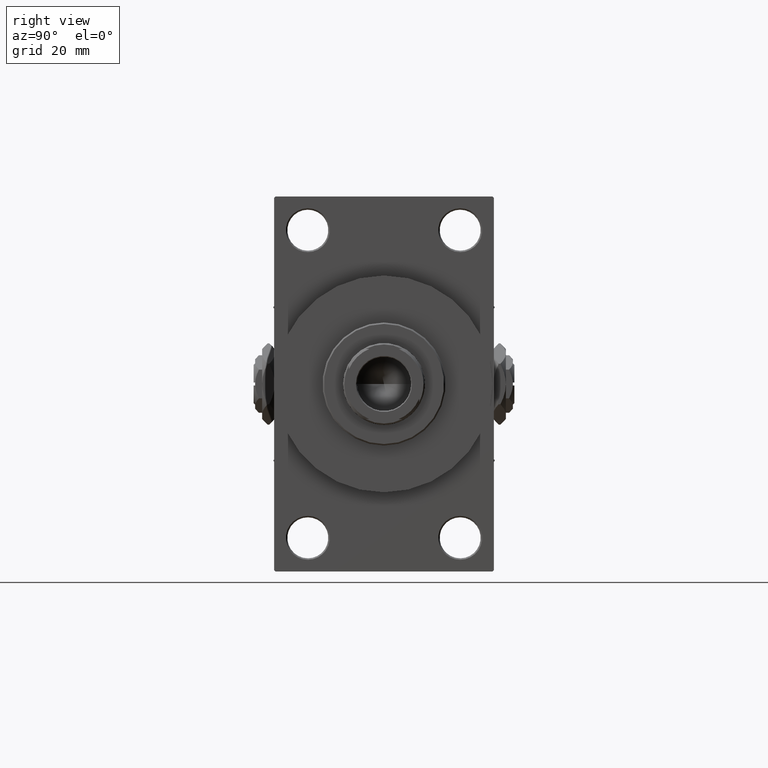
[diagram: clean part render]
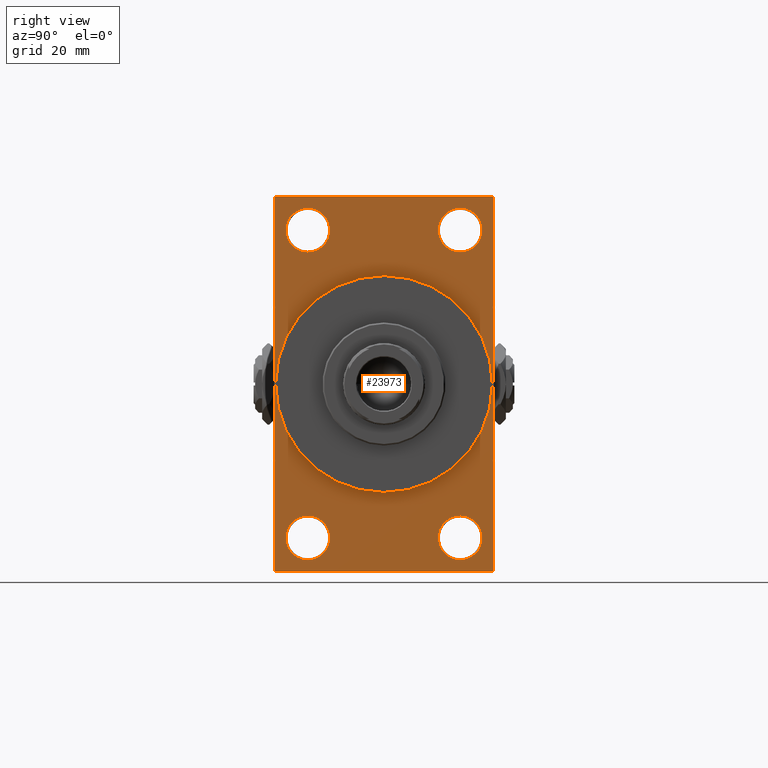
[diagram: same view with one face highlighted and labeled with its STEP entity id]
A machine part, right view. The second image highlights one B-rep face of the part: STEP entity #23973.
In plain terms, the highlighted planar face has unit normal (-1, 0, 0).
Its self-contained STEP definition (entity closure, byte-faithful):
#756 = AXIS2_PLACEMENT_3D ( 'NONE', #49057, #45839, #48575 ) ;
#771 = CIRCLE ( 'NONE', #46666, 7.500000000000007105 ) ;
#1392 = LINE ( 'NONE', #4126, #47202 ) ;
#1438 = CARTESIAN_POINT ( 'NONE',  ( 138.0000000000000000, 37.50000000000000000, 63.49999999999998579 ) ) ;
#1510 = DIRECTION ( 'NONE',  ( 0.000000000000000000, 0.000000000000000000, 1.000000000000000000 ) ) ;
#1576 = LINE ( 'NONE', #31816, #24591 ) ;
#1581 = VECTOR ( 'NONE', #5299, 1000.000000000000000 ) ;
#1877 = ORIENTED_EDGE ( 'NONE', *, *, #3727, .T. ) ;
#2300 = PLANE ( 'NONE',  #29749 ) ;
#2529 = CARTESIAN_POINT ( 'NONE',  ( 138.0000000000000000, -37.49999999999999289, 63.49999999999994316 ) ) ;
#2845 = ORIENTED_EDGE ( 'NONE', *, *, #24294, .T. ) ;
#3028 = CARTESIAN_POINT ( 'NONE',  ( 138.0000000000000000, 26.00000000000000000, -52.49999999999999289 ) ) ;
#3165 = DIRECTION ( 'NONE',  ( -0.000000000000000000, 0.7071067811865573427, 0.7071067811865378028 ) ) ;
#3394 = CARTESIAN_POINT ( 'NONE',  ( 138.0000000000000000, 4.531193156845206793E-15, -37.00000000000000000 ) ) ;
#3595 = AXIS2_PLACEMENT_3D ( 'NONE', #35723, #38965, #1510 ) ;
#3727 = EDGE_CURVE ( 'NONE', #38340, #19797, #27547, .T. ) ;
#4126 = CARTESIAN_POINT ( 'NONE',  ( 138.0000000000000000, -36.99999999999993605, -64.00000000000001421 ) ) ;
#4141 = EDGE_CURVE ( 'NONE', #42583, #33668, #24419, .T. ) ;
#4485 = CARTESIAN_POINT ( 'NONE',  ( 138.0000000000000000, 37.50000000000000000, 63.99999999999998579 ) ) ;
#4594 = VERTEX_POINT ( 'NONE', #16604 ) ;
#4792 = ORIENTED_EDGE ( 'NONE', *, *, #13881, .F. ) ;
#4955 = AXIS2_PLACEMENT_3D ( 'NONE', #45802, #31422, #27474 ) ;
#5059 = DIRECTION ( 'NONE',  ( -0.000000000000000000, -0.7071067811865524577, -0.7071067811865426878 ) ) ;
#5299 = DIRECTION ( 'NONE',  ( 0.000000000000000000, -1.000000000000000000, -1.850371707708594563E-16 ) ) ;
#6015 = FACE_BOUND ( 'NONE', #45447, .T. ) ;
#6319 = VECTOR ( 'NONE', #15708, 1000.000000000000000 ) ;
#6416 = ORIENTED_EDGE ( 'NONE', *, *, #26038, .T. ) ;
#6708 = CARTESIAN_POINT ( 'NONE',  ( 138.0000000000000000, 36.99999999999999289, -64.00000000000000000 ) ) ;
#7873 = VERTEX_POINT ( 'NONE', #12347 ) ;
#7999 = EDGE_CURVE ( 'NONE', #39759, #13985, #771, .T. ) ;
#8100 = AXIS2_PLACEMENT_3D ( 'NONE', #25015, #32939, #40147 ) ;
#8397 = EDGE_CURVE ( 'NONE', #48059, #45798, #25301, .T. ) ;
#8673 = EDGE_CURVE ( 'NONE', #45798, #48059, #11979, .T. ) ;
#8929 = VERTEX_POINT ( 'NONE', #3394 ) ;
#9620 = ORIENTED_EDGE ( 'NONE', *, *, #4141, .T. ) ;
#9717 = VECTOR ( 'NONE', #23822, 1000.000000000000000 ) ;
#10050 = CIRCLE ( 'NONE', #39344, 37.00000000000000000 ) ;
#10070 = CARTESIAN_POINT ( 'NONE',  ( 138.0000000000000000, 36.99999999999997158, 63.99999999999998579 ) ) ;
#10220 = ORIENTED_EDGE ( 'NONE', *, *, #22143, .T. ) ;
#10241 = CARTESIAN_POINT ( 'NONE',  ( 138.0000000000000000, -25.99999999999999645, 44.99999999999999289 ) ) ;
#11464 = VECTOR ( 'NONE', #3165, 1000.000000000000000 ) ;
#11609 = DIRECTION ( 'NONE',  ( 0.000000000000000000, 0.000000000000000000, -1.000000000000000000 ) ) ;
#11979 = CIRCLE ( 'NONE', #44457, 7.500000000000007105 ) ;
#12335 = CIRCLE ( 'NONE', #3595, 7.500000000000007105 ) ;
#12347 = CARTESIAN_POINT ( 'NONE',  ( 138.0000000000000000, -25.99999999999999645, 60.00000000000000711 ) ) ;
#12778 = EDGE_CURVE ( 'NONE', #36512, #7873, #16799, .T. ) ;
#12830 = CARTESIAN_POINT ( 'NONE',  ( 138.0000000000000000, -25.99999999999999645, -60.00000000000000000 ) ) ;
#13446 = FACE_BOUND ( 'NONE', #37375, .T. ) ;
#13881 = EDGE_CURVE ( 'NONE', #8929, #36675, #17504, .T. ) ;
#13985 = VERTEX_POINT ( 'NONE', #12830 ) ;
#14424 = DIRECTION ( 'NONE',  ( 0.000000000000000000, 0.000000000000000000, 1.000000000000000000 ) ) ;
#14479 = DIRECTION ( 'NONE',  ( -1.000000000000000000, 0.000000000000000000, -0.000000000000000000 ) ) ;
#14656 = EDGE_CURVE ( 'NONE', #13985, #39759, #18324, .T. ) ;
#15271 = DIRECTION ( 'NONE',  ( -1.000000000000000000, 0.000000000000000000, -0.000000000000000000 ) ) ;
#15708 = DIRECTION ( 'NONE',  ( 0.000000000000000000, -5.421010862427522170E-17, -1.000000000000000000 ) ) ;
#16430 = DIRECTION ( 'NONE',  ( 0.000000000000000000, 0.000000000000000000, 1.000000000000000000 ) ) ;
#16604 = CARTESIAN_POINT ( 'NONE',  ( 138.0000000000000000, 37.49999999999999289, -63.50000000000001421 ) ) ;
#16799 = CIRCLE ( 'NONE', #8100, 7.500000000000007105 ) ;
#17049 = CARTESIAN_POINT ( 'NONE',  ( 138.0000000000000000, 0.000000000000000000, 37.00000000000000000 ) ) ;
#17332 = EDGE_LOOP ( 'NONE', ( #31380, #26409 ) ) ;
#17504 = CIRCLE ( 'NONE', #4955, 37.00000000000000000 ) ;
#17591 = CARTESIAN_POINT ( 'NONE',  ( 138.0000000000000000, 26.00000000000000000, 52.49999999999999289 ) ) ;
#18267 = CARTESIAN_POINT ( 'NONE',  ( 138.0000000000000000, -25.99999999999999645, -52.49999999999999289 ) ) ;
#18324 = CIRCLE ( 'NONE', #43659, 7.500000000000007105 ) ;
#19221 = VERTEX_POINT ( 'NONE', #28141 ) ;
#19797 = VERTEX_POINT ( 'NONE', #44846 ) ;
#20132 = VERTEX_POINT ( 'NONE', #22354 ) ;
#20301 = VECTOR ( 'NONE', #43785, 1000.000000000000000 ) ;
#20493 = VERTEX_POINT ( 'NONE', #1438 ) ;
#22143 = EDGE_CURVE ( 'NONE', #43416, #4594, #32678, .T. ) ;
#22354 = CARTESIAN_POINT ( 'NONE',  ( 138.0000000000000000, -36.99999999999993605, -64.00000000000001421 ) ) ;
#22607 = DIRECTION ( 'NONE',  ( -1.000000000000000000, 0.000000000000000000, -0.000000000000000000 ) ) ;
#22717 = DIRECTION ( 'NONE',  ( 0.000000000000000000, 0.000000000000000000, 1.000000000000000000 ) ) ;
#23822 = DIRECTION ( 'NONE',  ( 0.000000000000000000, -1.000000000000000000, -1.850371707708594563E-16 ) ) ;
#23973 = ADVANCED_FACE ( 'NONE', ( #33030, #47888, #48129, #13446, #6015, #44432 ), #2300, .F. ) ;
#24140 = CARTESIAN_POINT ( 'NONE',  ( 138.0000000000000000, 37.49999999999999289, -64.00000000000000000 ) ) ;
#24294 = EDGE_CURVE ( 'NONE', #19797, #38340, #12335, .T. ) ;
#24419 = LINE ( 'NONE', #35337, #33094 ) ;
#24591 = VECTOR ( 'NONE', #5059, 1000.000000000000000 ) ;
#25015 = CARTESIAN_POINT ( 'NONE',  ( 138.0000000000000000, -25.99999999999999645, 52.50000000000000000 ) ) ;
#25301 = CIRCLE ( 'NONE', #47467, 7.500000000000007105 ) ;
#25487 = ORIENTED_EDGE ( 'NONE', *, *, #37859, .T. ) ;
#25599 = DIRECTION ( 'NONE',  ( -1.000000000000000000, 0.000000000000000000, -0.000000000000000000 ) ) ;
#25770 = DIRECTION ( 'NONE',  ( -1.000000000000000000, 0.000000000000000000, -0.000000000000000000 ) ) ;
#26038 = EDGE_CURVE ( 'NONE', #20493, #29072, #47227, .T. ) ;
#26409 = ORIENTED_EDGE ( 'NONE', *, *, #8397, .T. ) ;
#27464 = ORIENTED_EDGE ( 'NONE', *, *, #37182, .F. ) ;
#27474 = DIRECTION ( 'NONE',  ( 0.000000000000000000, 0.000000000000000000, -1.000000000000000000 ) ) ;
#27547 = CIRCLE ( 'NONE', #39445, 7.500000000000007105 ) ;
#27967 = EDGE_LOOP ( 'NONE', ( #33374, #37371 ) ) ;
#28141 = CARTESIAN_POINT ( 'NONE',  ( 138.0000000000000000, -36.99999999999995737, 63.99999999999997158 ) ) ;
#28510 = DIRECTION ( 'NONE',  ( -1.000000000000000000, 0.000000000000000000, -0.000000000000000000 ) ) ;
#28832 = CARTESIAN_POINT ( 'NONE',  ( 138.0000000000000000, 0.000000000000000000, 0.000000000000000000 ) ) ;
#29072 = VERTEX_POINT ( 'NONE', #31511 ) ;
#29180 = EDGE_CURVE ( 'NONE', #33668, #20132, #1392, .T. ) ;
#29749 = AXIS2_PLACEMENT_3D ( 'NONE', #28832, #25599, #40235 ) ;
#30307 = EDGE_CURVE ( 'NONE', #36675, #8929, #10050, .T. ) ;
#31380 = ORIENTED_EDGE ( 'NONE', *, *, #8673, .T. ) ;
#31422 = DIRECTION ( 'NONE',  ( 1.000000000000000000, 0.000000000000000000, 0.000000000000000000 ) ) ;
#31511 = CARTESIAN_POINT ( 'NONE',  ( 138.0000000000000000, 36.99999999999997158, 63.99999999999998579 ) ) ;
#31816 = CARTESIAN_POINT ( 'NONE',  ( 138.0000000000000000, -37.49999999999999289, 63.49999999999994316 ) ) ;
#32510 = ORIENTED_EDGE ( 'NONE', *, *, #36379, .T. ) ;
#32678 = LINE ( 'NONE', #36897, #11464 ) ;
#32722 = DIRECTION ( 'NONE',  ( 0.000000000000000000, 0.000000000000000000, 1.000000000000000000 ) ) ;
#32939 = DIRECTION ( 'NONE',  ( -1.000000000000000000, 0.000000000000000000, -0.000000000000000000 ) ) ;
#33030 = FACE_BOUND ( 'NONE', #33663, .T. ) ;
#33094 = VECTOR ( 'NONE', #35583, 1000.000000000000000 ) ;
#33277 = CARTESIAN_POINT ( 'NONE',  ( 138.0000000000000000, 26.00000000000000000, 44.99999999999998579 ) ) ;
#33374 = ORIENTED_EDGE ( 'NONE', *, *, #14656, .T. ) ;
#33663 = EDGE_LOOP ( 'NONE', ( #39378, #25487 ) ) ;
#33668 = VERTEX_POINT ( 'NONE', #46418 ) ;
#34034 = CIRCLE ( 'NONE', #756, 7.500000000000007105 ) ;
#34561 = CARTESIAN_POINT ( 'NONE',  ( 138.0000000000000000, 37.50000000000000000, 63.99999999999998579 ) ) ;
#34983 = LINE ( 'NONE', #4485, #9717 ) ;
#35337 = CARTESIAN_POINT ( 'NONE',  ( 138.0000000000000000, -37.49999999999999289, 63.99999999999997158 ) ) ;
#35583 = DIRECTION ( 'NONE',  ( 0.000000000000000000, 0.000000000000000000, -1.000000000000000000 ) ) ;
#35723 = CARTESIAN_POINT ( 'NONE',  ( 138.0000000000000000, 26.00000000000000000, 52.49999999999999289 ) ) ;
#36379 = EDGE_CURVE ( 'NONE', #19221, #42583, #1576, .T. ) ;
#36512 = VERTEX_POINT ( 'NONE', #10241 ) ;
#36675 = VERTEX_POINT ( 'NONE', #17049 ) ;
#36897 = CARTESIAN_POINT ( 'NONE',  ( 138.0000000000000000, 37.49999999999999289, -63.50000000000001421 ) ) ;
#37111 = CARTESIAN_POINT ( 'NONE',  ( 138.0000000000000000, 26.00000000000000000, -60.00000000000000000 ) ) ;
#37182 = EDGE_CURVE ( 'NONE', #20493, #4594, #48930, .T. ) ;
#37306 = DIRECTION ( 'NONE',  ( 0.000000000000000000, 0.000000000000000000, 1.000000000000000000 ) ) ;
#37371 = ORIENTED_EDGE ( 'NONE', *, *, #7999, .T. ) ;
#37375 = EDGE_LOOP ( 'NONE', ( #1877, #2845 ) ) ;
#37859 = EDGE_CURVE ( 'NONE', #7873, #36512, #34034, .T. ) ;
#37894 = CARTESIAN_POINT ( 'NONE',  ( 138.0000000000000000, 0.000000000000000000, 0.000000000000000000 ) ) ;
#38243 = EDGE_CURVE ( 'NONE', #43416, #20132, #46681, .T. ) ;
#38340 = VERTEX_POINT ( 'NONE', #33277 ) ;
#38835 = DIRECTION ( 'NONE',  ( 0.000000000000000000, 0.7071067811865574537, -0.7071067811865376918 ) ) ;
#38965 = DIRECTION ( 'NONE',  ( -1.000000000000000000, 0.000000000000000000, -0.000000000000000000 ) ) ;
#39344 = AXIS2_PLACEMENT_3D ( 'NONE', #37894, #41612, #11609 ) ;
#39378 = ORIENTED_EDGE ( 'NONE', *, *, #12778, .T. ) ;
#39445 = AXIS2_PLACEMENT_3D ( 'NONE', #17591, #28510, #32722 ) ;
#39759 = VERTEX_POINT ( 'NONE', #46568 ) ;
#40147 = DIRECTION ( 'NONE',  ( 0.000000000000000000, 0.000000000000000000, 1.000000000000000000 ) ) ;
#40227 = CARTESIAN_POINT ( 'NONE',  ( 138.0000000000000000, 26.00000000000000000, -44.99999999999998579 ) ) ;
#40235 = DIRECTION ( 'NONE',  ( -0.000000000000000000, 0.000000000000000000, 1.000000000000000000 ) ) ;
#40784 = CARTESIAN_POINT ( 'NONE',  ( 138.0000000000000000, 26.00000000000000000, -52.49999999999999289 ) ) ;
#41612 = DIRECTION ( 'NONE',  ( 1.000000000000000000, 0.000000000000000000, 0.000000000000000000 ) ) ;
#41798 = ORIENTED_EDGE ( 'NONE', *, *, #30307, .F. ) ;
#41949 = ORIENTED_EDGE ( 'NONE', *, *, #48178, .T. ) ;
#42284 = EDGE_LOOP ( 'NONE', ( #9620, #43558, #44314, #10220, #27464, #6416, #41949, #32510 ) ) ;
#42583 = VERTEX_POINT ( 'NONE', #2529 ) ;
#43416 = VERTEX_POINT ( 'NONE', #6708 ) ;
#43558 = ORIENTED_EDGE ( 'NONE', *, *, #29180, .T. ) ;
#43659 = AXIS2_PLACEMENT_3D ( 'NONE', #44611, #25770, #16430 ) ;
#43785 = DIRECTION ( 'NONE',  ( 0.000000000000000000, -0.7071067811865672237, 0.7071067811865279218 ) ) ;
#44314 = ORIENTED_EDGE ( 'NONE', *, *, #38243, .F. ) ;
#44432 = FACE_OUTER_BOUND ( 'NONE', #42284, .T. ) ;
#44457 = AXIS2_PLACEMENT_3D ( 'NONE', #3028, #22607, #14424 ) ;
#44611 = CARTESIAN_POINT ( 'NONE',  ( 138.0000000000000000, -25.99999999999999645, -52.49999999999999289 ) ) ;
#44846 = CARTESIAN_POINT ( 'NONE',  ( 138.0000000000000000, 26.00000000000000000, 60.00000000000000000 ) ) ;
#45447 = EDGE_LOOP ( 'NONE', ( #41798, #4792 ) ) ;
#45798 = VERTEX_POINT ( 'NONE', #37111 ) ;
#45802 = CARTESIAN_POINT ( 'NONE',  ( 138.0000000000000000, 0.000000000000000000, 0.000000000000000000 ) ) ;
#45839 = DIRECTION ( 'NONE',  ( -1.000000000000000000, 0.000000000000000000, -0.000000000000000000 ) ) ;
#46418 = CARTESIAN_POINT ( 'NONE',  ( 138.0000000000000000, -37.49999999999999289, -63.49999999999997158 ) ) ;
#46568 = CARTESIAN_POINT ( 'NONE',  ( 138.0000000000000000, -25.99999999999999645, -44.99999999999998579 ) ) ;
#46666 = AXIS2_PLACEMENT_3D ( 'NONE', #18267, #15271, #22717 ) ;
#46681 = LINE ( 'NONE', #24140, #1581 ) ;
#47202 = VECTOR ( 'NONE', #38835, 999.9999999999998863 ) ;
#47227 = LINE ( 'NONE', #10070, #20301 ) ;
#47467 = AXIS2_PLACEMENT_3D ( 'NONE', #40784, #14479, #37306 ) ;
#47888 = FACE_BOUND ( 'NONE', #27967, .T. ) ;
#48059 = VERTEX_POINT ( 'NONE', #40227 ) ;
#48129 = FACE_BOUND ( 'NONE', #17332, .T. ) ;
#48178 = EDGE_CURVE ( 'NONE', #29072, #19221, #34983, .T. ) ;
#48575 = DIRECTION ( 'NONE',  ( 0.000000000000000000, 0.000000000000000000, 1.000000000000000000 ) ) ;
#48930 = LINE ( 'NONE', #34561, #6319 ) ;
#49057 = CARTESIAN_POINT ( 'NONE',  ( 138.0000000000000000, -25.99999999999999645, 52.50000000000000000 ) ) ;